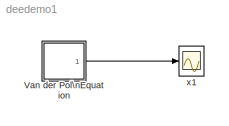
MODEL deedemo1
KIND model
CONFIG AbsTol = 1e-6
CONFIG FixedStep = auto
CONFIG MaxStep = auto
CONFIG RelTol = 1e-3
CONFIG Solver = ode45
CONFIG SolverMode = SingleTasking
CONFIG StartTime = 0.0
CONFIG StopTime = 999999
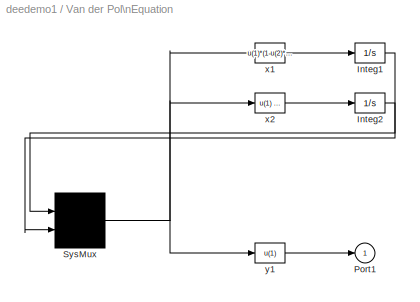
BLOCK [SubSystem] Van der Pol\nEquation
  MaskDisplay = disp('vdp')
  MaskIconFrame = on
  MaskIconOpaque = on
  MaskIconRotate = none
  MaskIconUnits = autoscale
  MaskType = Differential Equation Editor (DEE)
  OpenFcn = diffeqed
  Ports = [0, 1, 0, 0, 0]
  ShowPortLabels = on
BLOCK [Integrator] Van der Pol\nEquation/Integ1
  AbsoluteTolerance = auto
  ExternalReset = none
  InitialCondition = 1
  InitialConditionSource = internal
  LimitOutput = off
  LowerSaturationLimit = -inf
  Ports = [1, 1, 0, 0, 0]
  ShowSaturationPort = off
  ShowStatePort = off
  UpperSaturationLimit = inf
BLOCK [Integrator] Van der Pol\nEquation/Integ2
  AbsoluteTolerance = auto
  ExternalReset = none
  InitialCondition = 1
  InitialConditionSource = internal
  LimitOutput = off
  LowerSaturationLimit = -inf
  Ports = [1, 1, 0, 0, 0]
  ShowSaturationPort = off
  ShowStatePort = off
  UpperSaturationLimit = inf
BLOCK [Outport] Van der Pol\nEquation/Port1
  InitialOutput = 0
  OutputWhenDisabled = held
  Port = 1
BLOCK [Mux] Van der Pol\nEquation/SysMux
  DisplayOption = none
  Inputs = 2
  Ports = [2, 1, 0, 0, 0]
BLOCK [Fcn] Van der Pol\nEquation/x1
  Expr = u(1)*(1-u(2)*u(2))-u(2)
BLOCK [Fcn] Van der Pol\nEquation/x2
  Expr = u(1)
BLOCK [Fcn] Van der Pol\nEquation/y1
  Expr = u(1)
BLOCK [Scope] x1
  DataFormat = Matrix
  Decimation = 1
  Floating = off
  Grid = on
  LimitMaxRows = on
  MaxRows = 5000
  NumInputPorts = 1
  Ports = [1, 0, 0, 0, 0]
  SampleInput = off
  SampleTime = 0
  SaveName = ScopeData
  SaveToWorkspace = off
  TickLabels = on
  TimeRange = 20.000000
  YMax = 3
  YMin = -3
  ZoomMode = on
LINE Van der Pol\nEquation/Integ1:1 -> Van der Pol\nEquation/SysMux:1
LINE Van der Pol\nEquation/Integ2:1 -> Van der Pol\nEquation/SysMux:2
NET Van der Pol\nEquation/SysMux:1 -> Van der Pol\nEquation/x1:1, Van der Pol\nEquation/x2:1, Van der Pol\nEquation/y1:1
LINE Van der Pol\nEquation/x1:1 -> Van der Pol\nEquation/Integ1:1
LINE Van der Pol\nEquation/x2:1 -> Van der Pol\nEquation/Integ2:1
LINE Van der Pol\nEquation/y1:1 -> Van der Pol\nEquation/Port1:1
LINE Van der Pol\nEquation:1 -> x1:1
note: NET lines group one-source signal fan-out (src -> all destinations, sorted); 1:1 wires keep LINE
